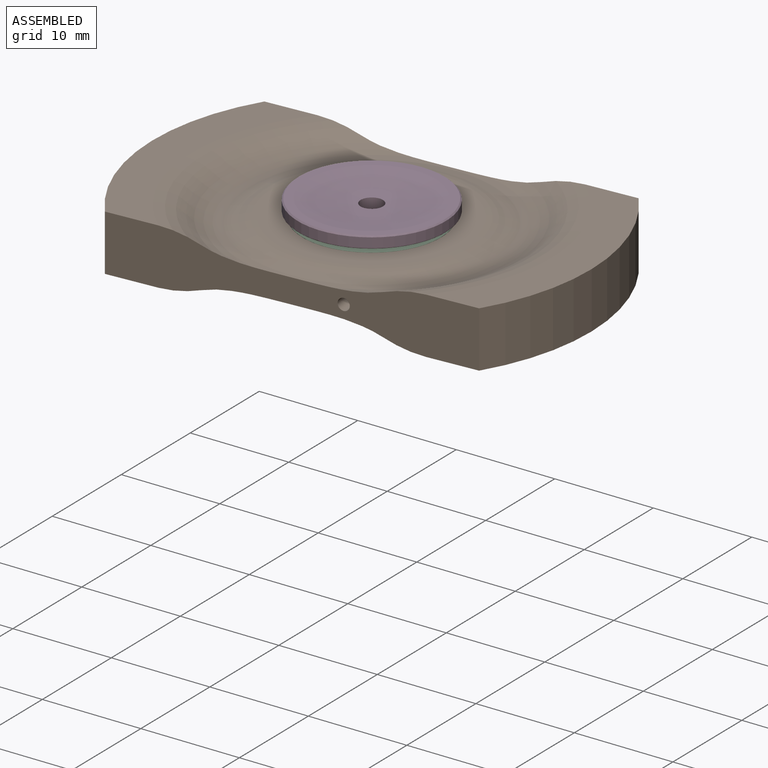
[diagram: assembled view]
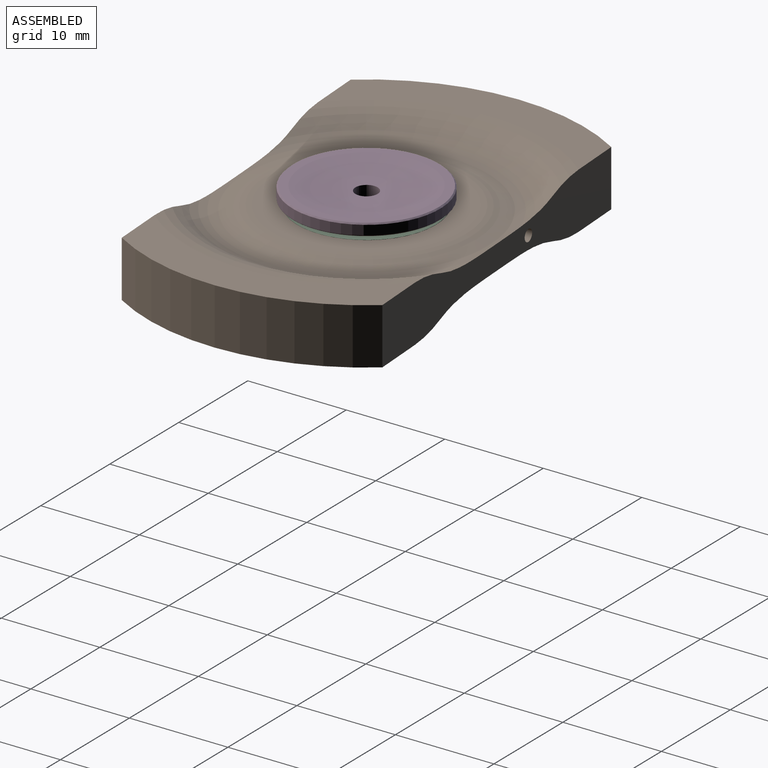
[diagram: assembled view, second angle]
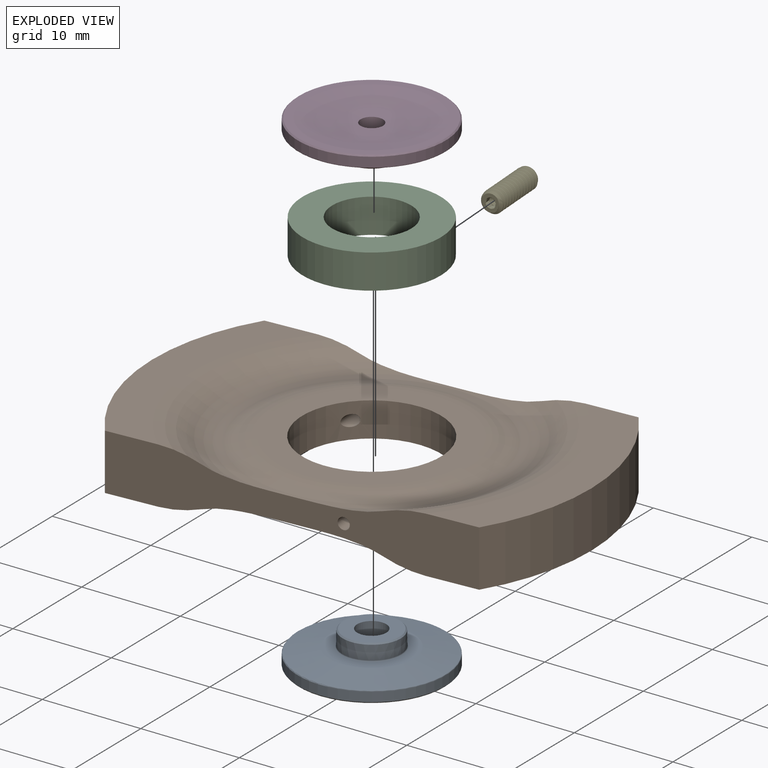
[diagram: exploded view]
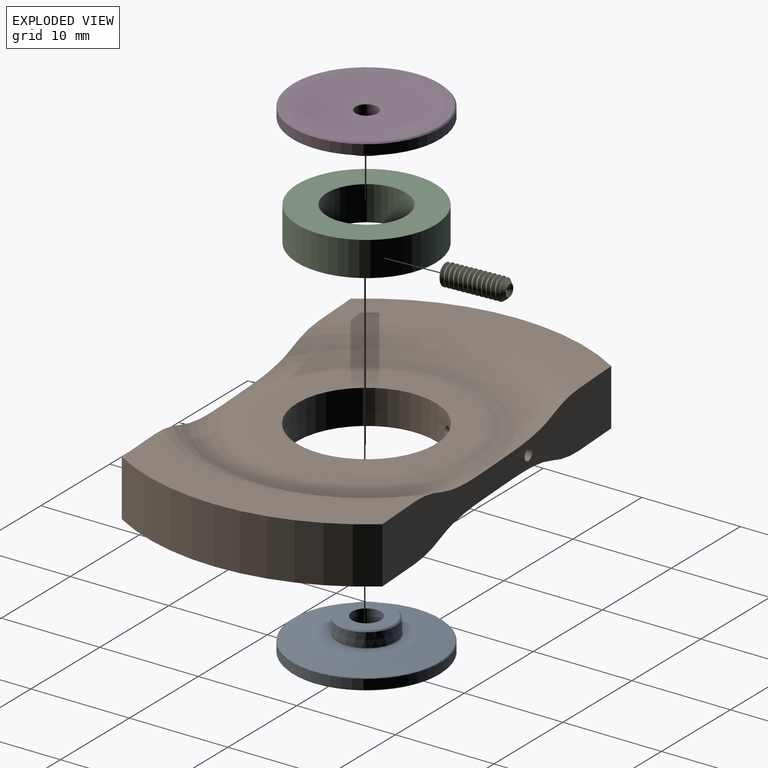
[diagram: exploded view, second angle]
ASSEMBLY  parts=5 mates=7
PART A: 15 faces, bbox 16.2x16.2x3.4 mm
  f0: sphere r=42.5mm, area 106.9mm2, adj f12,f14
  f1: plane 5.64x5.64mm, normal (0,0,-1), area 18.2mm2, adj f8,f13
  f2: cone r=2.95mm half-angle=1deg, axis (0,0,1), area 26.5mm2, adj f8,f9
  f3: plane 8.47x8.47mm, normal (0,0,-1), area 26.7mm2, adj f9,f10
  f4: cone r=4.24mm half-angle=80deg, axis (0,0,1), area 117.8mm2, adj f10,f11
  f5: cylinder r=7.5mm len=15mm, axis (0,0,1), area 45.4mm2, adj f7,f11
  f6: plane 14.74x14.74mm, normal (0,0,1), area 37.6mm2, adj f7,f12
  f7: cone r=7.37mm half-angle=45deg, axis (0,0,-1), area 8.5mm2, adj f5,f6
  f8: cone r=2.95mm half-angle=45.5deg, axis (0,0,1), area 3.3mm2, adj f1,f2
  f9: torus R=3.07mm, axis (0,0,1), area 2.9mm2, adj f2,f3
  f10: torus R=4.24mm, axis (0,0,1), area 0.5mm2, adj f3,f4
  f11: torus R=7.4mm, axis (0,0,-1), area 6.6mm2, adj f4,f5
  f12: torus R=6.51mm, axis (0,0,-1), area 0.6mm2, adj f0,f6
  f13: cylinder r=1.47mm len=2.95mm, axis (0,0,1), area 12.7mm2, adj f1,f14
  f14: cone r=1.47mm half-angle=41deg, axis (0,0,1), area 29.6mm2, adj f0,f13
PART B: 21 faces, bbox 47.2x38.8x5.7 mm
  f0: cylinder r=7.03mm len=14.07mm, axis (0,0,-1), area 151.5mm2, adj f10,f12,f19,f20
  f1: plane 36.48x5.72mm, normal (0,-1,0), area 151.6mm2, adj f3,f4,f5,f6,f7,f8,f9,f11
  f2: plane 36.48x5.72mm, normal (0,1,0), area 151.6mm2, adj f3,f4,f5,f6,f7,f8,f9,f11
  f3: plane 25.4x9.19mm, normal (0,0,-1), area 110.8mm2, adj f1,f2,f6,f13
  f4: plane 25.4x9.19mm, normal (0,0,1), area 110.8mm2, adj f1,f2,f6,f16
  f5: cylinder r=22.23mm len=25.4mm, axis (0,0,-1), area 154.5mm2, adj f1,f2,f7,f8
  f6: cylinder r=22.23mm len=25.4mm, axis (0,0,-1), area 154.5mm2, adj f1,f2,f3,f4
  f7: plane 25.4x9.19mm, normal (0,0,1), area 110.8mm2, adj f1,f2,f5,f17
  f8: plane 25.4x9.19mm, normal (0,0,-1), area 110.8mm2, adj f1,f2,f5,f14
  f9: torus R=12.7mm, axis (0,0,1), area 307.5mm2, adj f1,f2,f16,f17,f18
  f10: plane 19.06x19.06mm, normal (0,0,1), area 129.7mm2, adj f0,f18
  f11: torus R=12.7mm, axis (0,0,-1), area 307.5mm2, adj f1,f2,f13,f14,f15
  f12: plane 19.06x19.06mm, normal (0,0,-1), area 129.7mm2, adj f0,f15
  f13: torus R=18.2mm, axis (0,0,1), area 83.8mm2, adj f1,f2,f3,f11
  f14: torus R=18.2mm, axis (0,0,1), area 83.8mm2, adj f1,f2,f8,f11
  f15: torus R=9.53mm, axis (0,0,1), area 104.7mm2, adj f11,f12
  f16: torus R=18.2mm, axis (0,0,1), area 83.8mm2, adj f1,f2,f4,f9
  f17: torus R=18.2mm, axis (0,0,1), area 83.8mm2, adj f1,f2,f7,f9
  f18: torus R=9.53mm, axis (0,0,-1), area 104.7mm2, adj f9,f10
  f19: cylinder r=0.6mm len=8.48mm, axis (0,-1,0), area 29.3mm2, adj f0,f1
  f20: cylinder r=0.6mm len=8.48mm, axis (0,1,0), area 29.3mm2, adj f0,f2
PART C: 4 faces, bbox 14x14x3.5 mm
  f0: cylinder r=4mm len=8mm, axis (0,0,-1), area 88mm2, adj f2,f3
  f1: cylinder r=7mm len=14mm, axis (0,0,-1), area 153.9mm2, adj f2,f3
  f2: plane 14x14mm, normal (0,0,1), area 103.7mm2, adj f0,f1
  f3: plane 14x14mm, normal (0,0,-1), area 103.7mm2, adj f0,f1
PART D: 14 faces, bbox 16.2x16.2x3.4 mm
  f0: sphere r=42.5mm, area 129.2mm2, adj f12,f13
  f1: plane 5.64x5.64mm, normal (0,0,-1), area 21mm2, adj f8,f13
  f2: cone r=2.95mm half-angle=1deg, axis (0,0,1), area 26.5mm2, adj f8,f9
  f3: plane 8.47x8.47mm, normal (0,0,-1), area 26.7mm2, adj f9,f10
  f4: cone r=4.24mm half-angle=80deg, axis (0,0,1), area 117.8mm2, adj f10,f11
  f5: cylinder r=7.5mm len=15mm, axis (0,0,1), area 45.4mm2, adj f7,f11
  f6: plane 14.74x14.74mm, normal (0,0,1), area 37.6mm2, adj f7,f12
  f7: cone r=7.37mm half-angle=45deg, axis (0,0,-1), area 8.5mm2, adj f5,f6
  f8: cone r=2.95mm half-angle=45.5deg, axis (0,0,1), area 3.3mm2, adj f1,f2
  f9: torus R=3.07mm, axis (0,0,1), area 2.9mm2, adj f2,f3
  f10: torus R=4.24mm, axis (0,0,1), area 0.5mm2, adj f3,f4
  f11: torus R=7.4mm, axis (0,0,-1), area 6.6mm2, adj f4,f5
  f12: torus R=6.51mm, axis (0,0,-1), area 0.6mm2, adj f0,f6
  f13: cylinder r=1.13mm len=2.92mm, axis (0,0,1), area 20.7mm2, adj f0,f1
PART E: 27 faces, bbox 2.7x2.4x6.8 mm
  f0: plane 0.39x0.22mm, normal (0,0,1), area 0mm2, adj f1,f25,f26
  f1: plane 0.75x0.64mm, normal (-0.5,-0.87,0), area 0.3mm2, adj f0,f2,f3,f24,f25
  f2: plane 0.44x0.13mm, normal (0,0,1), area 0mm2, adj f1,f3,f26
  f3: plane 0.75x0.64mm, normal (0.5,-0.87,0), area 0.3mm2, adj f1,f2,f4,f5,f23
  f4: plane 0.39x0.22mm, normal (0,0,1), area 0mm2, adj f3,f5,f26
  f5: plane 0.75x0.71mm, normal (1,0,0), area 0.3mm2, adj f3,f4,f6,f7,f22
  f6: plane 0.39x0.22mm, normal (0,0,1), area 0mm2, adj f5,f7,f26
  f7: plane 0.75x0.64mm, normal (0.5,0.87,0), area 0.3mm2, adj f5,f6,f8,f9,f21
  f8: plane 0.44x0.13mm, normal (0,0,1), area 0mm2, adj f7,f9,f26
  f9: plane 0.75x0.64mm, normal (-0.5,0.87,0), area 0.3mm2, adj f7,f8,f10,f11,f25
  f10: plane 0.39x0.22mm, normal (0,0,1), area 0mm2, adj f9,f25,f26
  f11: cone r=0.51mm half-angle=45deg, axis (0,0,1), area 0mm2, adj f9,f12
  f12: plane 1.77x1.7mm, normal (0,0,1), area 1.5mm2, adj f11,f13,f17,f18,f19,f20,f21,f22
  f13: bspline ~6.33x1.84mm, area 3.9mm2, adj f12,f14,f17,f19
  f14: cone r=0.6mm half-angle=45deg, axis (0,0,1), area 2.4mm2, adj f13,f15,f16,f17,f19
  f15: cylinder r=1.09mm len=5.7mm, axis (0,0,1), area 2.2mm2, adj f14,f17,f18,f19
  f16: cone r=0mm half-angle=59deg, axis (0,0,-1), area 1.3mm2, adj f14
  f17: bspline ~6.44x2.52mm, area 26.6mm2, adj f12,f13,f14,f15,f18
  f18: cone r=1.09mm half-angle=55deg, axis (0,0,-1), area 0.6mm2, adj f12,f15,f17,f19
  f19: bspline ~6.44x2.52mm, area 26.6mm2, adj f12,f13,f14,f15,f18
  f20: cone r=0.51mm half-angle=45deg, axis (0,0,1), area 0mm2, adj f12,f25
  f21: cone r=0.51mm half-angle=45deg, axis (0,0,1), area 0mm2, adj f7,f12
  f22: cone r=0.51mm half-angle=45deg, axis (0,0,1), area 0mm2, adj f5,f12
  f23: cone r=0.51mm half-angle=45deg, axis (0,0,1), area 0mm2, adj f3,f12
  f24: cone r=0.51mm half-angle=45deg, axis (0,0,1), area 0mm2, adj f1,f12
  f25: plane 0.75x0.71mm, normal (-1,0,0), area 0.3mm2, adj f0,f1,f9,f10,f20
  f26: cone r=0.44mm half-angle=60deg, axis (0,0,1), area 0.7mm2, adj f0,f2,f4,f6,f8,f10
PLACE A rot(axis=(1,0,0),180deg) t=(-0.41,-0.22,-0.59)mm
PLACE B rot(axis=(0,0,1),3.5deg) t=(-0.41,-0.22,-0.49)mm
PLACE C rot(axis=(0,0,1),0.1deg) t=(-0.41,-0.22,-0.49)mm fixed
PLACE D rot(axis=(0,0,1),0.1deg) t=(-0.41,-0.22,-0.39)mm
PLACE E rot(axis=(0.52,-0.59,0.62),128.3deg) t=(4.49,2.15,-0.49)mm
MATE planar D.f13 <-> C.f0  axis (0,0,-1) through (-0.41,-0.22,1.26)mm
MATE cylindrical C.f0 <-> A.f2  axis (0,0,-1) through (-0.41,-0.22,-2.24)mm
MATE cylindrical C.f0 <-> D.f2  axis (0,0,-1) through (-0.41,-0.22,-0.49)mm
MATE planar C.f0 <-> A.f2  axis (0,0,-1) through (-0.41,-0.22,-2.24)mm
MATE cylindrical C.f0 <-> B.f0  axis (0,0,-1) through (-0.41,-0.22,-0.49)mm
MATE cylindrical B.f19 <-> E.f18  axis (0.06,-1,0) through (5.4,-12.58,-0.49)mm
MATE planar C.f0 <-> B.f0  axis (0,0,1) through (-0.41,-0.22,1.26)mm
